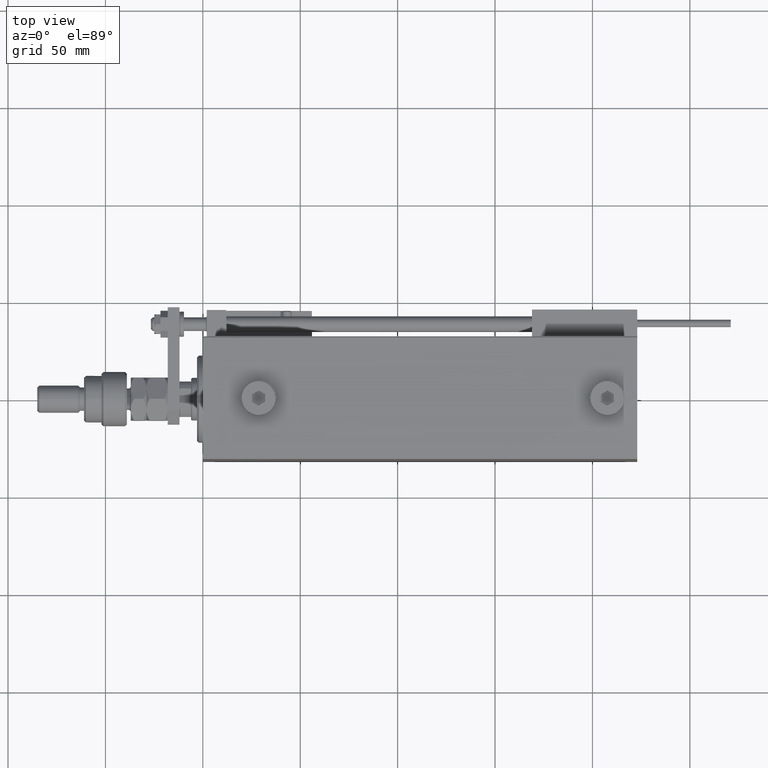
[diagram: clean part render]
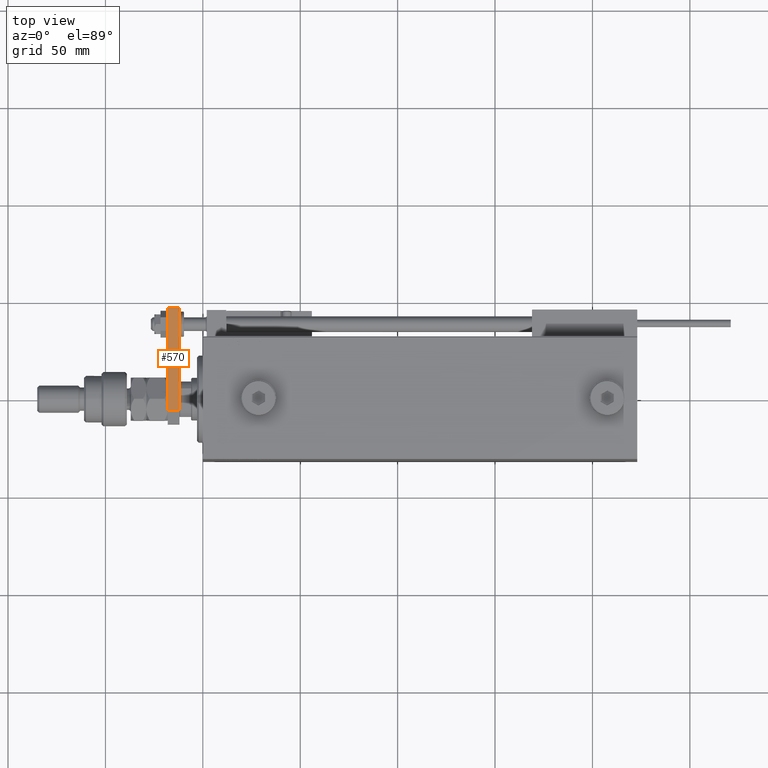
[diagram: same view with one face highlighted and labeled with its STEP entity id]
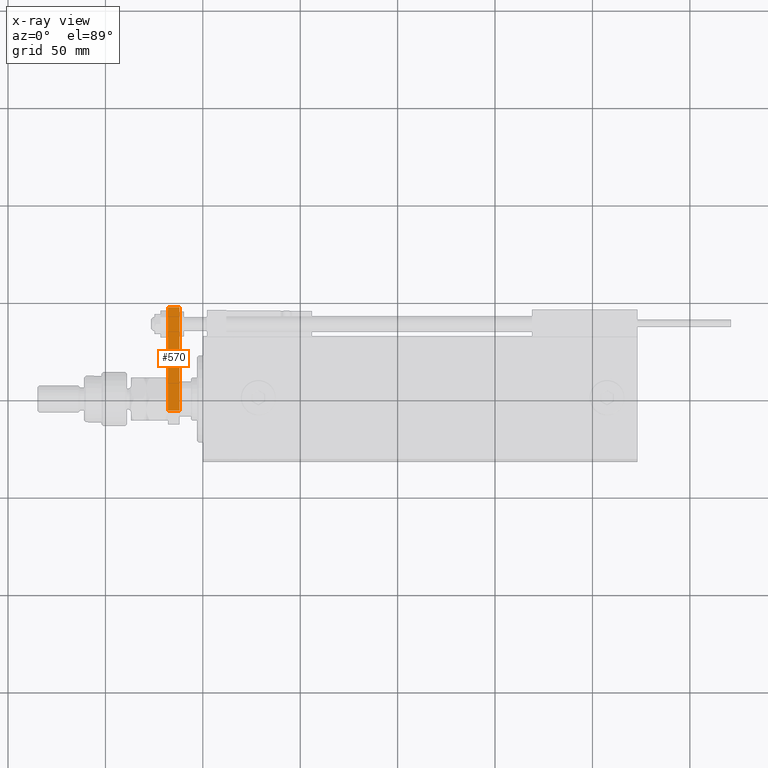
[diagram: x-ray of the same camera — body ghosted, the highlighted face saturated]
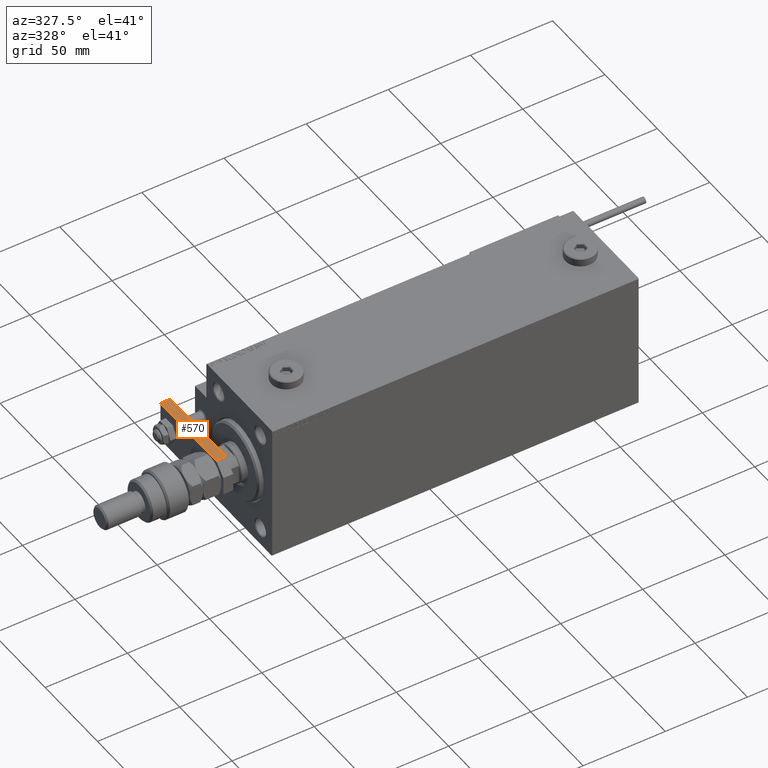
[diagram: same view with one face highlighted and labeled with its STEP entity id]
A machine part, top view. The second image highlights one B-rep face of the part: STEP entity #570.
The next image is the same camera in x-ray: the body ghosted, the highlighted face saturated — about 0% of this face is hidden behind the body in this view.
A second angle (auxiliary view) of the same face is appended — the face is thin or edge-on in the first view.
In plain terms, the highlighted planar face has unit normal (-0, -0, -1).
Its self-contained STEP definition (entity closure, byte-faithful):
#570 = ADVANCED_FACE ( 'NONE', ( #37886 ), #7394, .F. ) ;
#3314 = CARTESIAN_POINT ( 'NONE',  ( 12.50000000000000355, 60.00000000000000000, 6.000000000000000000 ) ) ;
#4060 = VERTEX_POINT ( 'NONE', #49093 ) ;
#4143 = CARTESIAN_POINT ( 'NONE',  ( 12.50000000000000355, 7.000000000000006217, 6.000000000000000000 ) ) ;
#7394 = PLANE ( 'NONE',  #35222 ) ;
#7661 = DIRECTION ( 'NONE',  ( -1.000000000000000000, 0.000000000000000000, 0.000000000000000000 ) ) ;
#7687 = EDGE_CURVE ( 'NONE', #26405, #4060, #19634, .T. ) ;
#9896 = CARTESIAN_POINT ( 'NONE',  ( 12.50000000000000355, 4.814824860968089633E-32, 0.000000000000000000 ) ) ;
#10163 = LINE ( 'NONE', #9896, #12762 ) ;
#11386 = VECTOR ( 'NONE', #27762, 1000.000000000000000 ) ;
#12762 = VECTOR ( 'NONE', #44599, 1000.000000000000000 ) ;
#14812 = CARTESIAN_POINT ( 'NONE',  ( 12.50000000000000355, 60.00000000000000000, 0.000000000000000000 ) ) ;
#14892 = CARTESIAN_POINT ( 'NONE',  ( 12.50000000000000355, 4.814824860968089633E-32, 6.000000000000000000 ) ) ;
#18814 = VECTOR ( 'NONE', #19564, 1000.000000000000000 ) ;
#19564 = DIRECTION ( 'NONE',  ( -0.000000000000000000, -0.000000000000000000, -1.000000000000000000 ) ) ;
#19634 = LINE ( 'NONE', #14892, #11386 ) ;
#21411 = ORIENTED_EDGE ( 'NONE', *, *, #46787, .T. ) ;
#24744 = DIRECTION ( 'NONE',  ( 0.000000000000000000, 0.000000000000000000, 1.000000000000000000 ) ) ;
#25072 = EDGE_LOOP ( 'NONE', ( #48696, #54010, #21411, #29598 ) ) ;
#25085 = VERTEX_POINT ( 'NONE', #14812 ) ;
#26405 = VERTEX_POINT ( 'NONE', #48949 ) ;
#27762 = DIRECTION ( 'NONE',  ( 0.000000000000000000, 1.000000000000000000, 0.000000000000000000 ) ) ;
#28318 = VERTEX_POINT ( 'NONE', #29974 ) ;
#28713 = EDGE_CURVE ( 'NONE', #26405, #28318, #29907, .T. ) ;
#29598 = ORIENTED_EDGE ( 'NONE', *, *, #37879, .F. ) ;
#29907 = LINE ( 'NONE', #4143, #42500 ) ;
#29974 = CARTESIAN_POINT ( 'NONE',  ( 12.50000000000000355, 7.000000000000006217, 0.000000000000000000 ) ) ;
#35222 = AXIS2_PLACEMENT_3D ( 'NONE', #42098, #7661, #24744 ) ;
#37879 = EDGE_CURVE ( 'NONE', #4060, #25085, #53736, .T. ) ;
#37886 = FACE_OUTER_BOUND ( 'NONE', #25072, .T. ) ;
#42098 = CARTESIAN_POINT ( 'NONE',  ( 12.50000000000000355, 4.814824860968089633E-32, 6.000000000000000000 ) ) ;
#42500 = VECTOR ( 'NONE', #55404, 1000.000000000000000 ) ;
#44599 = DIRECTION ( 'NONE',  ( 0.000000000000000000, 1.000000000000000000, 0.000000000000000000 ) ) ;
#46787 = EDGE_CURVE ( 'NONE', #28318, #25085, #10163, .T. ) ;
#48696 = ORIENTED_EDGE ( 'NONE', *, *, #7687, .F. ) ;
#48949 = CARTESIAN_POINT ( 'NONE',  ( 12.50000000000000355, 7.000000000000006217, 6.000000000000000000 ) ) ;
#49093 = CARTESIAN_POINT ( 'NONE',  ( 12.50000000000000355, 60.00000000000000000, 6.000000000000000000 ) ) ;
#53736 = LINE ( 'NONE', #3314, #18814 ) ;
#54010 = ORIENTED_EDGE ( 'NONE', *, *, #28713, .T. ) ;
#55404 = DIRECTION ( 'NONE',  ( 0.000000000000000000, 0.000000000000000000, -1.000000000000000000 ) ) ;